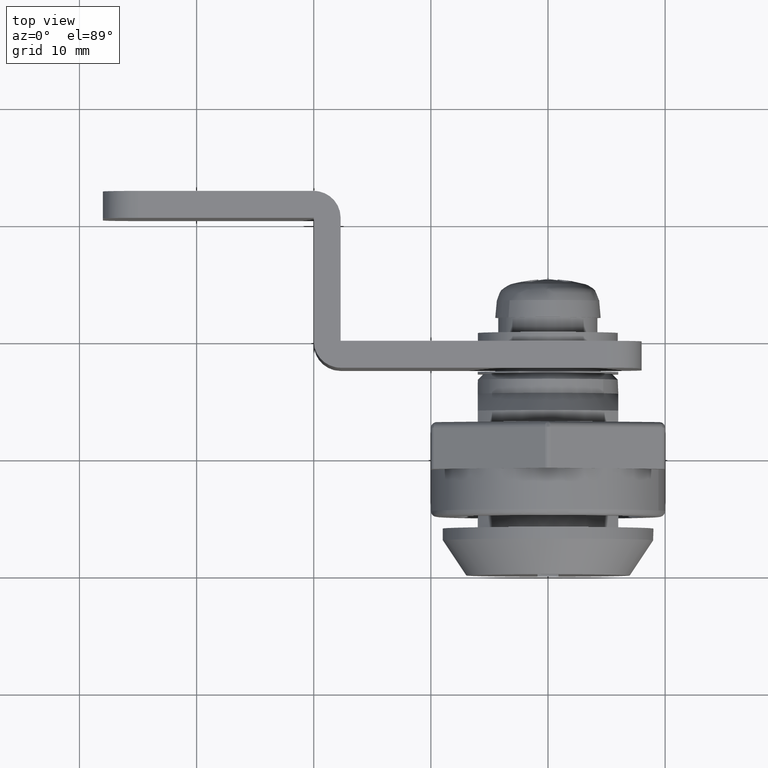
[diagram: clean part render]
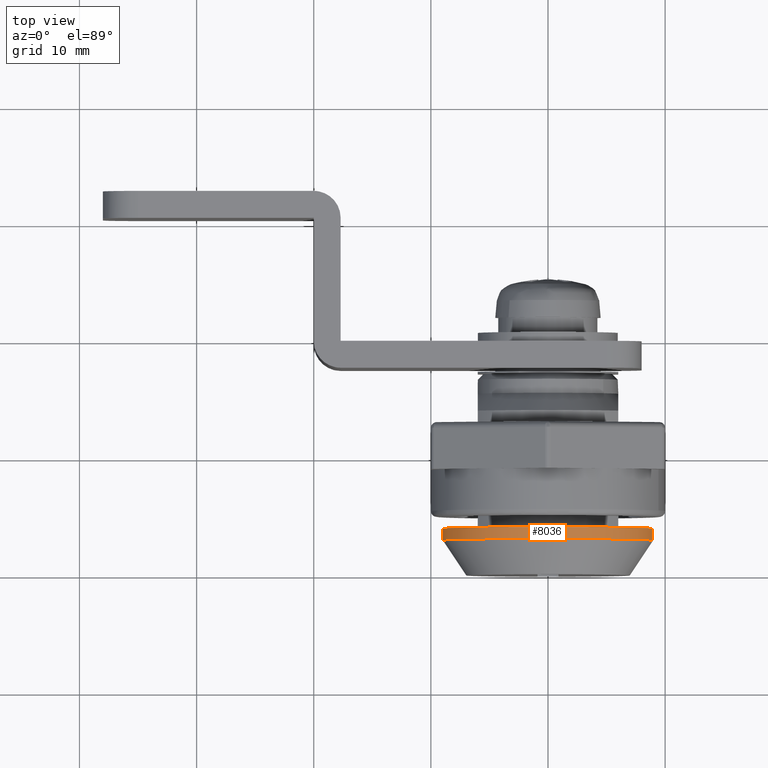
[diagram: same view with one face highlighted and labeled with its STEP entity id]
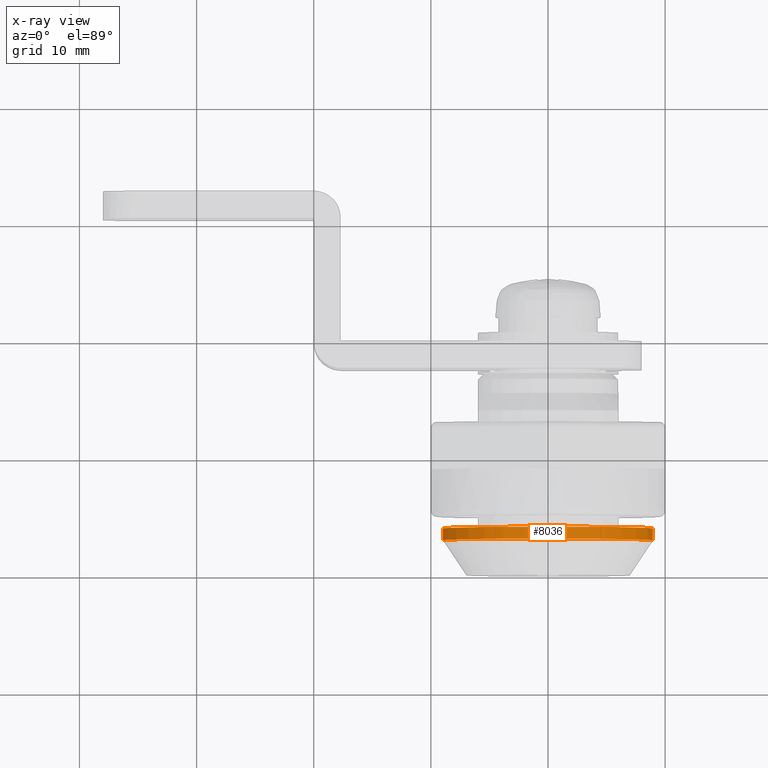
[diagram: x-ray of the same camera — body ghosted, the highlighted face saturated]
A machine part, top view. The second image highlights one B-rep face of the part: STEP entity #8036.
The next image is the same camera in x-ray: the body ghosted, the highlighted face saturated — about 0% of this face is hidden behind the body in this view.
In plain terms, the highlighted face is a freeform B-spline surface patch.
Its self-contained STEP definition (entity closure, byte-faithful):
#7927=CARTESIAN_POINT('',(8.941222740921422,4.025000000000000,1.026905982663243));
#7928=CARTESIAN_POINT('',(8.080336373274735,4.025000000000000,8.522603639218865));
#7929=CARTESIAN_POINT('',(0.549436855813713,4.025000000000000,8.983213185796799));
#7930=CARTESIAN_POINT('',(-8.433776329983086,4.025000000000000,9.532650041610513));
#7931=CARTESIAN_POINT('',(-8.983213185796799,4.025000000000000,0.549436855813712));
#7932=CARTESIAN_POINT('',(8.941222740921422,2.974375000000000,1.026905982663243));
#7933=CARTESIAN_POINT('',(8.080336373274735,2.974374999999998,8.522603639218865));
#7934=CARTESIAN_POINT('',(0.549436855813713,2.974374999999999,8.983213185796799));
#7935=CARTESIAN_POINT('',(-8.433776329983086,2.974375000000000,9.532650041610513));
#7936=CARTESIAN_POINT('',(-8.983213185796799,2.974374999999999,0.549436855813712));
#7944=(BOUNDED_SURFACE()B_SPLINE_SURFACE(2,1,((#7927,#7932),(#7928,#7933),(#7929,#7934),(#7930,#7935),(#7931,#7936)),.UNSPECIFIED.,.F.,.F.,.U.)B_SPLINE_SURFACE_WITH_KNOTS((3,2,3),(2,2),(0.0,13.122285655979640,28.033973901411059),(0.0,1.0),.UNSPECIFIED.)GEOMETRIC_REPRESENTATION_ITEM()RATIONAL_B_SPLINE_SURFACE(((0.938140952186599,0.938140952186599),(0.742253967444162,0.742253967444162),(1.0,1.0),(0.707106781186548,0.707106781186548),(1.0,1.0)))REPRESENTATION_ITEM('')SURFACE());
#7945=CARTESIAN_POINT('',(8.941223748907252,2.999999999999452,1.026897206101406));
#7946=VERTEX_POINT('',#7945);
#7947=CARTESIAN_POINT('',(0.0,3.0,9.0));
#7948=VERTEX_POINT('',#7947);
#7949=CARTESIAN_POINT('',(8.941223748907252,2.999999999999451,1.026897206101406));
#7950=CARTESIAN_POINT('',(8.025514980968705,3.000000000000001,9.000000000000002));
#7951=CARTESIAN_POINT('',(0.0,3.0,9.0));
#7959=(BOUNDED_CURVE()B_SPLINE_CURVE(2,(#7949,#7950,#7951),.UNSPECIFIED.,.F.,.U.)B_SPLINE_CURVE_WITH_KNOTS((3,3),(0.269767589757177,0.500000000000000),.UNSPECIFIED.)CURVE()GEOMETRIC_REPRESENTATION_ITEM()RATIONAL_B_SPLINE_CURVE((0.957344064147432,0.730265953155200,1.0))REPRESENTATION_ITEM(''));
#7960=EDGE_CURVE('',#7946,#7948,#7959,.T.);
#7961=ORIENTED_EDGE('',*,*,#7960,.F.);
#7962=CARTESIAN_POINT('',(8.941223468903210,4.0,1.026899644119961));
#7963=VERTEX_POINT('',#7962);
#7964=CARTESIAN_POINT('',(8.941223468903210,4.0,1.026899644119961));
#7965=CARTESIAN_POINT('',(8.941223748907252,2.999999999999452,1.026897206101406));
#7966=QUASI_UNIFORM_CURVE('',1,(#7964,#7965),.UNSPECIFIED.,.F.,.U.);
#7967=EDGE_CURVE('',#7963,#7946,#7966,.T.);
#7968=ORIENTED_EDGE('',*,*,#7967,.F.);
#7969=CARTESIAN_POINT('',(0.0,4.0,9.0));
#7970=VERTEX_POINT('',#7969);
#7971=CARTESIAN_POINT('',(8.941223468903210,4.0,1.026899644119961));
#7972=CARTESIAN_POINT('',(8.025512778253185,4.000000000000001,9.000000000000002));
#7973=CARTESIAN_POINT('',(0.0,4.0,9.0));
#7981=(BOUNDED_CURVE()B_SPLINE_CURVE(2,(#7971,#7972,#7973),.UNSPECIFIED.,.F.,.U.)B_SPLINE_CURVE_WITH_KNOTS((3,3),(0.269767635903069,0.500000000000000),.UNSPECIFIED.)CURVE()GEOMETRIC_REPRESENTATION_ITEM()RATIONAL_B_SPLINE_CURVE((0.957343973120111,0.730266007218476,1.0))REPRESENTATION_ITEM(''));
#7982=EDGE_CURVE('',#7963,#7970,#7981,.T.);
#7983=ORIENTED_EDGE('',*,*,#7982,.T.);
#7984=CARTESIAN_POINT('',(-8.983213517201993,4.0,0.549431437333112));
#7985=VERTEX_POINT('',#7984);
#7986=CARTESIAN_POINT('',(0.0,4.0,9.0));
#7987=CARTESIAN_POINT('',(-8.466359718418024,4.0,9.0));
#7988=CARTESIAN_POINT('',(-8.983213517201994,4.000000000000000,0.549431437333112));
#7996=(BOUNDED_CURVE()B_SPLINE_CURVE(2,(#7986,#7987,#7988),.UNSPECIFIED.,.F.,.U.)B_SPLINE_CURVE_WITH_KNOTS((3,3),(0.500000000000000,0.739333066318482),.UNSPECIFIED.)CURVE()GEOMETRIC_REPRESENTATION_ITEM()RATIONAL_B_SPLINE_CURVE((1.0,0.719603871349946,0.976072264729083))REPRESENTATION_ITEM(''));
#7997=EDGE_CURVE('',#7970,#7985,#7996,.T.);
#7998=ORIENTED_EDGE('',*,*,#7997,.T.);
#7999=CARTESIAN_POINT('',(-8.983213235509101,3.000000000000089,0.549436043023556));
#8000=VERTEX_POINT('',#7999);
#8001=CARTESIAN_POINT('',(-8.983213517201993,4.0,0.549431437333112));
#8002=CARTESIAN_POINT('',(-8.983213235509101,3.000000000000089,0.549436043023556));
#8003=QUASI_UNIFORM_CURVE('',1,(#8001,#8002),.UNSPECIFIED.,.F.,.U.);
#8004=EDGE_CURVE('',#7985,#8000,#8003,.T.);
#8005=ORIENTED_EDGE('',*,*,#8004,.T.);
#8006=CARTESIAN_POINT('',(-8.972256003598403,3.000000000001346,0.706131861558753));
#8007=VERTEX_POINT('',#8006);
#8008=CARTESIAN_POINT('',(-8.972256003598403,3.000000000001346,0.706131861558753));
#8009=CARTESIAN_POINT('',(-8.978418386891063,3.0,0.627831357769885));
#8010=CARTESIAN_POINT('',(-8.983213235509101,3.000000000000089,0.549436043023556));
#8018=(BOUNDED_CURVE()B_SPLINE_CURVE(2,(#8008,#8009,#8010),.UNSPECIFIED.,.F.,.U.)B_SPLINE_CURVE_WITH_KNOTS((3,3),(0.736331300632458,0.739332993465614),.UNSPECIFIED.)CURVE()GEOMETRIC_REPRESENTATION_ITEM()RATIONAL_B_SPLINE_CURVE((0.969723356171172,0.972855508145703,0.976072108591427))REPRESENTATION_ITEM(''));
#8019=EDGE_CURVE('',#8007,#8000,#8018,.T.);
#8020=ORIENTED_EDGE('',*,*,#8019,.F.);
#8021=CARTESIAN_POINT('',(0.0,3.0,9.0));
#8022=CARTESIAN_POINT('',(-8.319514424908801,3.000000000000000,9.000000000000002));
#8023=CARTESIAN_POINT('',(-8.972256003598405,3.000000000001346,0.706131861558753));
#8031=(BOUNDED_CURVE()B_SPLINE_CURVE(2,(#8021,#8022,#8023),.UNSPECIFIED.,.F.,.U.)B_SPLINE_CURVE_WITH_KNOTS((3,3),(0.500000000000000,0.736331300632457),.UNSPECIFIED.)CURVE()GEOMETRIC_REPRESENTATION_ITEM()RATIONAL_B_SPLINE_CURVE((1.0,0.723120658605559,0.969723356171170))REPRESENTATION_ITEM(''));
#8032=EDGE_CURVE('',#7948,#8007,#8031,.T.);
#8033=ORIENTED_EDGE('',*,*,#8032,.F.);
#8034=EDGE_LOOP('',(#7961,#7968,#7983,#7998,#8005,#8020,#8033));
#8035=FACE_OUTER_BOUND('',#8034,.T.);
#8036=ADVANCED_FACE('',(#8035),#7944,.T.);